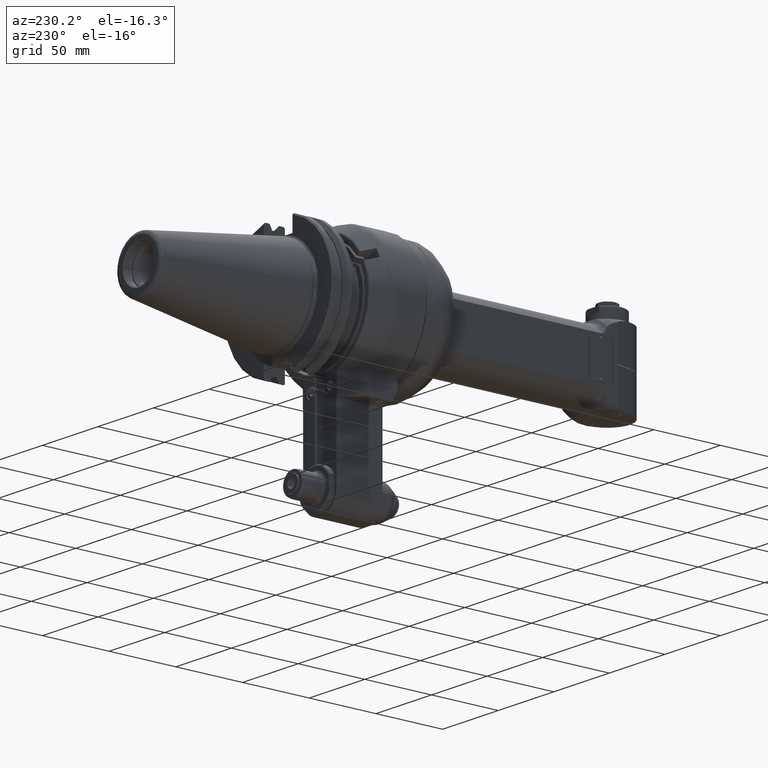
[diagram: clean part render]
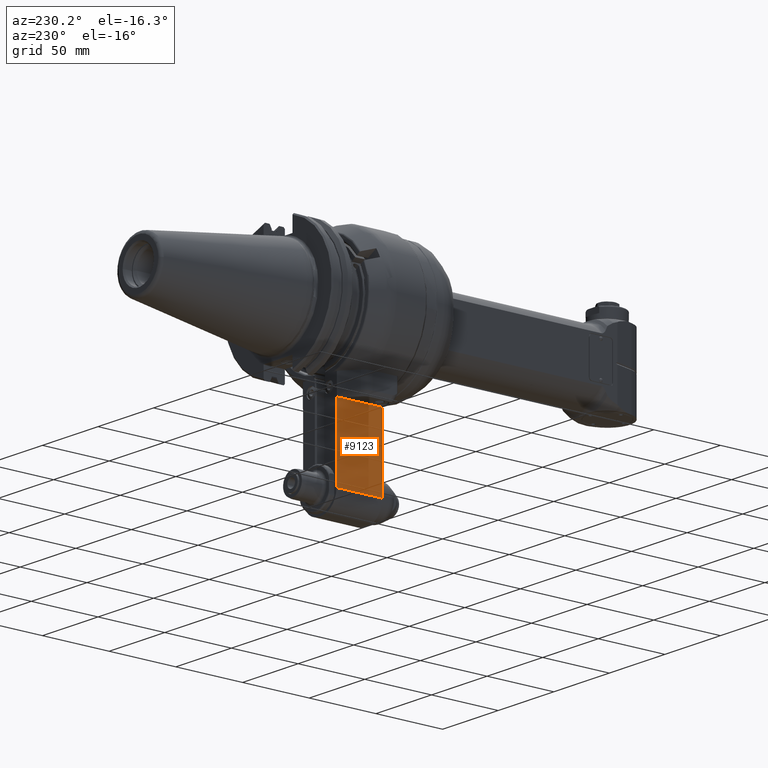
[diagram: same view with one face highlighted and labeled with its STEP entity id]
A machine part, auxiliary view. The second image highlights one B-rep face of the part: STEP entity #9123.
In plain terms, the highlighted planar face has unit normal (1, 0, 0).
Its self-contained STEP definition (entity closure, byte-faithful):
#613=PLANE('',#10094);
#1040=FACE_OUTER_BOUND('',#1646,.T.);
#1646=EDGE_LOOP('',(#7549,#7550,#7551,#7552));
#2166=LINE('',#15342,#2762);
#2248=LINE('',#16192,#2844);
#2256=LINE('',#16217,#2852);
#2257=LINE('',#16219,#2853);
#2762=VECTOR('',#11817,54.5);
#2844=VECTOR('',#12233,54.5);
#2852=VECTOR('',#12259,34.5);
#2853=VECTOR('',#12262,34.5);
#4074=VERTEX_POINT('',#15339);
#4075=VERTEX_POINT('',#15341);
#4223=VERTEX_POINT('',#16189);
#4224=VERTEX_POINT('',#16191);
#5166=EDGE_CURVE('',#4074,#4075,#2166,.T.);
#5388=EDGE_CURVE('',#4224,#4223,#2248,.T.);
#5400=EDGE_CURVE('',#4224,#4074,#2256,.T.);
#5401=EDGE_CURVE('',#4075,#4223,#2257,.T.);
#7549=ORIENTED_EDGE('',*,*,#5401,.F.);
#7550=ORIENTED_EDGE('',*,*,#5166,.F.);
#7551=ORIENTED_EDGE('',*,*,#5400,.F.);
#7552=ORIENTED_EDGE('',*,*,#5388,.T.);
#9123=ADVANCED_FACE('',(#1040),#613,.F.);
#10094=AXIS2_PLACEMENT_3D('',#16218,#12260,#12261);
#11817=DIRECTION('',(0.,0.,1.));
#12233=DIRECTION('',(0.,0.,1.));
#12259=DIRECTION('',(0.,1.,0.));
#12260=DIRECTION('center_axis',(1.,0.,0.));
#12261=DIRECTION('ref_axis',(0.,0.,1.));
#12262=DIRECTION('',(0.,-1.,0.));
#15339=CARTESIAN_POINT('',(-15.,39.5,-112.));
#15341=CARTESIAN_POINT('',(-15.,39.5,-57.5));
#15342=CARTESIAN_POINT('',(-15.,39.5,-112.));
#16189=CARTESIAN_POINT('',(-15.,5.,-57.5));
#16191=CARTESIAN_POINT('',(-15.,5.,-112.));
#16192=CARTESIAN_POINT('',(-15.,5.,-112.));
#16217=CARTESIAN_POINT('',(-15.,5.,-112.));
#16218=CARTESIAN_POINT('Origin',(-15.,1.505997599982,-63.45));
#16219=CARTESIAN_POINT('',(-15.,39.5,-57.5));